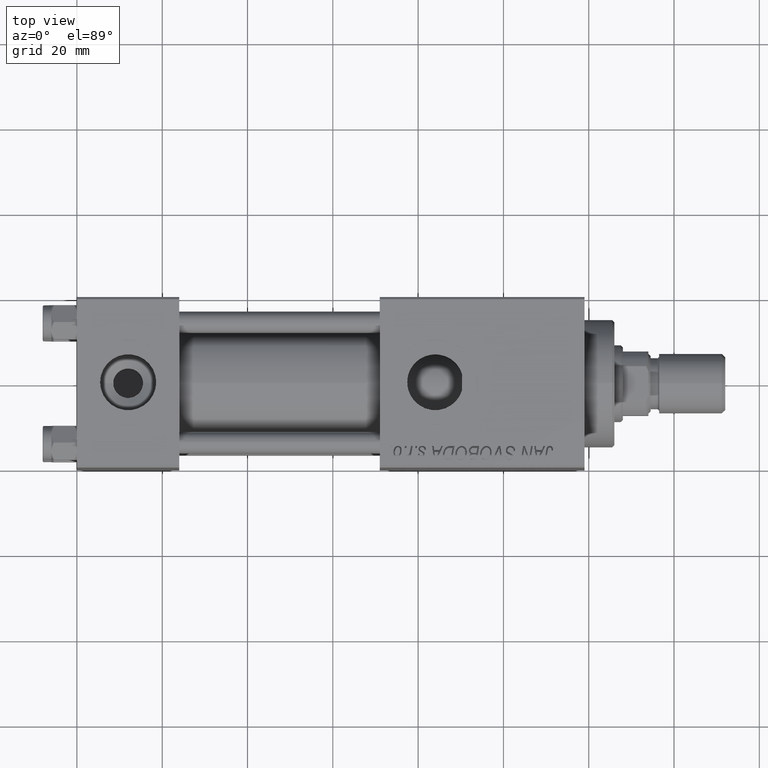
[diagram: clean part render]
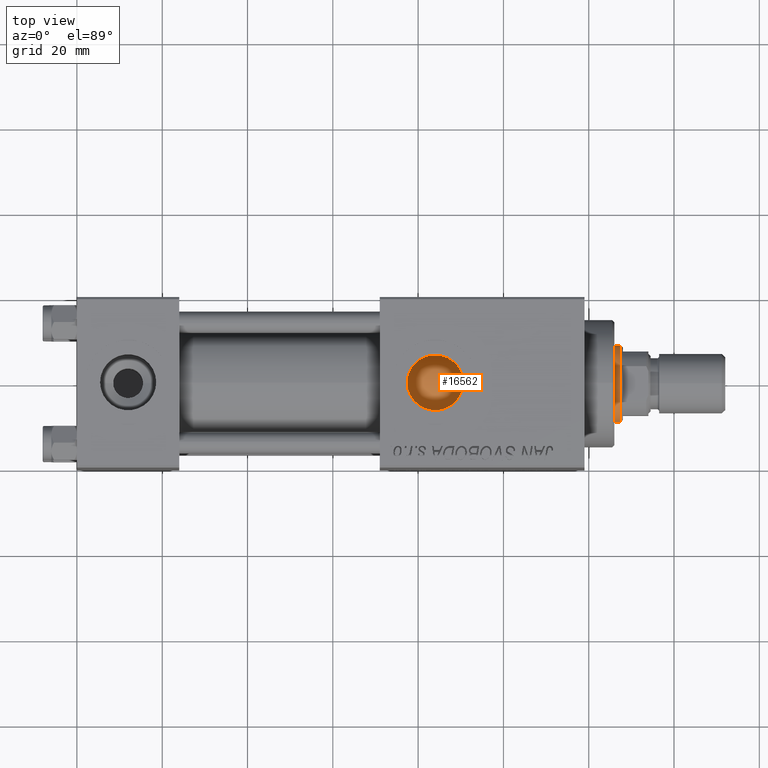
[diagram: same view with one face highlighted and labeled with its STEP entity id]
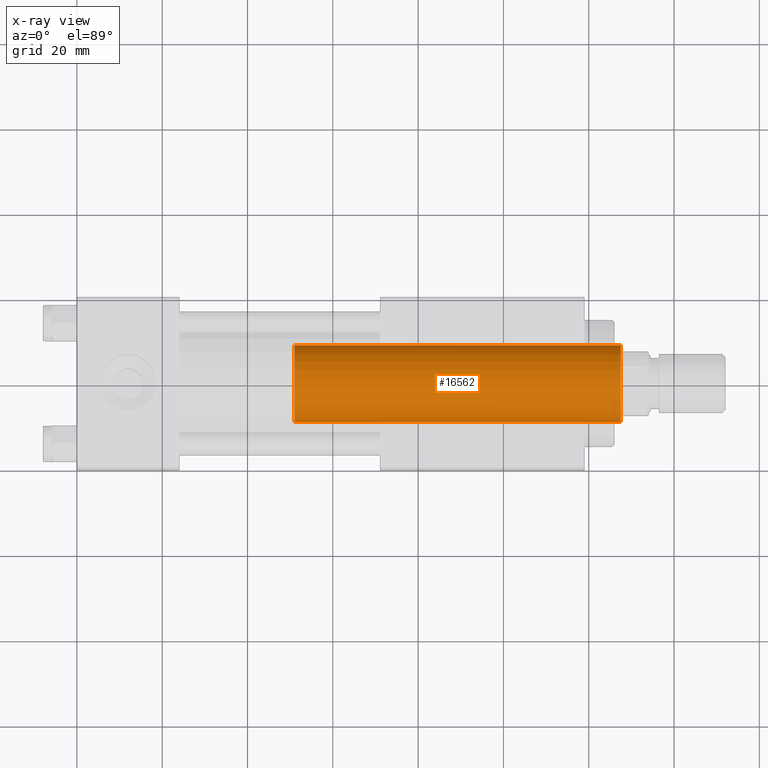
[diagram: x-ray of the same camera — body ghosted, the highlighted face saturated]
A machine part, top view. The second image highlights one B-rep face of the part: STEP entity #16562.
The next image is the same camera in x-ray: the body ghosted, the highlighted face saturated — about 1% of this face is hidden behind the body in this view.
In plain terms, the highlighted cylindrical surface (partial cylindrical patch) has radius 9 mm, axis along (-1, 0, 0).
Its self-contained STEP definition (entity closure, byte-faithful):
#3219 = ORIENTED_EDGE ( 'NONE', *, *, #34069, .T. ) ;
#4503 = VERTEX_POINT ( 'NONE', #49274 ) ;
#5256 = CARTESIAN_POINT ( 'NONE',  ( -9.000000000000000000, 0.000000000000000000, 104.0000000000000000 ) ) ;
#5979 = DIRECTION ( 'NONE',  ( -0.000000000000000000, -0.000000000000000000, -1.000000000000000000 ) ) ;
#6700 = DIRECTION ( 'NONE',  ( 0.000000000000000000, 0.000000000000000000, 1.000000000000000000 ) ) ;
#9205 = VECTOR ( 'NONE', #50172, 1000.000000000000000 ) ;
#9409 = DIRECTION ( 'NONE',  ( -1.000000000000000000, 0.000000000000000000, 0.000000000000000000 ) ) ;
#9421 = AXIS2_PLACEMENT_3D ( 'NONE', #34103, #45811, #9409 ) ;
#10066 = ORIENTED_EDGE ( 'NONE', *, *, #19958, .T. ) ;
#11145 = AXIS2_PLACEMENT_3D ( 'NONE', #34599, #6700, #30617 ) ;
#11299 = VERTEX_POINT ( 'NONE', #35852 ) ;
#15891 = VERTEX_POINT ( 'NONE', #26260 ) ;
#16562 = ADVANCED_FACE ( 'NONE', ( #46608 ), #46080, .T. ) ;
#17710 = EDGE_CURVE ( 'NONE', #11299, #34278, #21659, .T. ) ;
#17856 = EDGE_LOOP ( 'NONE', ( #22798, #35945, #3219, #10066 ) ) ;
#19958 = EDGE_CURVE ( 'NONE', #15891, #34278, #34028, .T. ) ;
#20081 = CIRCLE ( 'NONE', #35319, 9.000000000000000000 ) ;
#21519 = DIRECTION ( 'NONE',  ( 0.000000000000000000, 0.000000000000000000, -1.000000000000000000 ) ) ;
#21659 = LINE ( 'NONE', #30952, #24627 ) ;
#22798 = ORIENTED_EDGE ( 'NONE', *, *, #17710, .F. ) ;
#24627 = VECTOR ( 'NONE', #5979, 1000.000000000000000 ) ;
#26166 = EDGE_CURVE ( 'NONE', #11299, #4503, #20081, .T. ) ;
#26260 = CARTESIAN_POINT ( 'NONE',  ( -9.000000000000000000, 0.000000000000000000, 27.00000000000000000 ) ) ;
#29230 = CARTESIAN_POINT ( 'NONE',  ( 0.000000000000000000, 0.000000000000000000, 103.5000000000000000 ) ) ;
#29756 = DIRECTION ( 'NONE',  ( 1.000000000000000000, 0.000000000000000000, 0.000000000000000000 ) ) ;
#30617 = DIRECTION ( 'NONE',  ( 1.000000000000000000, 0.000000000000000000, 0.000000000000000000 ) ) ;
#30952 = CARTESIAN_POINT ( 'NONE',  ( 9.000000000000000000, 1.102182119232617714E-15, 104.0000000000000000 ) ) ;
#34028 = CIRCLE ( 'NONE', #11145, 9.000000000000000000 ) ;
#34069 = EDGE_CURVE ( 'NONE', #4503, #15891, #37429, .T. ) ;
#34103 = CARTESIAN_POINT ( 'NONE',  ( 0.000000000000000000, 0.000000000000000000, 104.0000000000000000 ) ) ;
#34278 = VERTEX_POINT ( 'NONE', #49062 ) ;
#34599 = CARTESIAN_POINT ( 'NONE',  ( 0.000000000000000000, 0.000000000000000000, 27.00000000000000000 ) ) ;
#35319 = AXIS2_PLACEMENT_3D ( 'NONE', #29230, #21519, #29756 ) ;
#35852 = CARTESIAN_POINT ( 'NONE',  ( 9.000000000000000000, 1.102182119232617714E-15, 103.5000000000000000 ) ) ;
#35945 = ORIENTED_EDGE ( 'NONE', *, *, #26166, .T. ) ;
#37429 = LINE ( 'NONE', #5256, #9205 ) ;
#45811 = DIRECTION ( 'NONE',  ( -0.000000000000000000, -0.000000000000000000, -1.000000000000000000 ) ) ;
#46080 = CYLINDRICAL_SURFACE ( 'NONE', #9421, 9.000000000000000000 ) ;
#46608 = FACE_OUTER_BOUND ( 'NONE', #17856, .T. ) ;
#49062 = CARTESIAN_POINT ( 'NONE',  ( 9.000000000000000000, 1.102182119232617714E-15, 27.00000000000000000 ) ) ;
#49274 = CARTESIAN_POINT ( 'NONE',  ( -9.000000000000000000, 0.000000000000000000, 103.5000000000000000 ) ) ;
#50172 = DIRECTION ( 'NONE',  ( -0.000000000000000000, -0.000000000000000000, -1.000000000000000000 ) ) ;